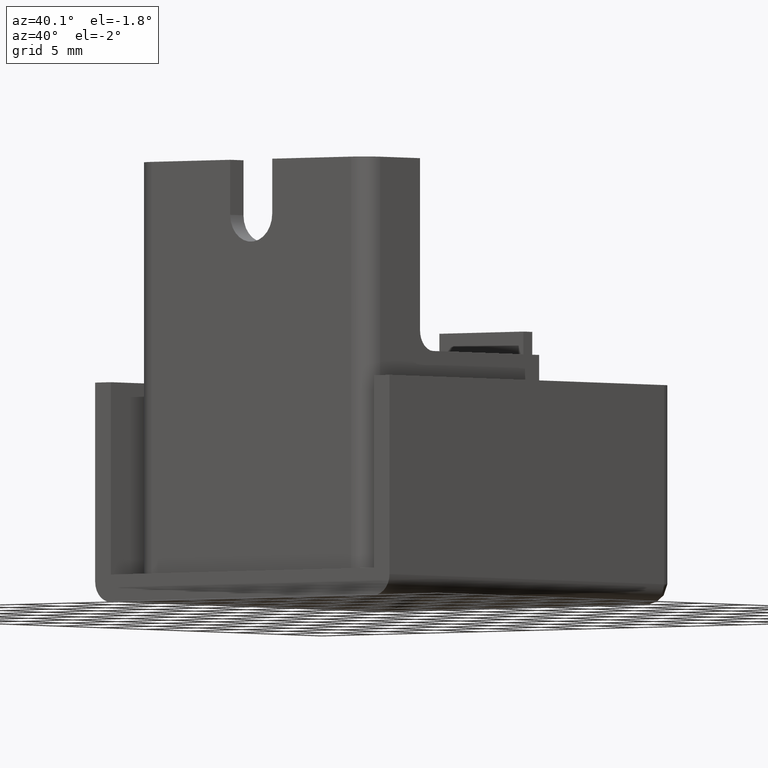
[diagram: clean part render]
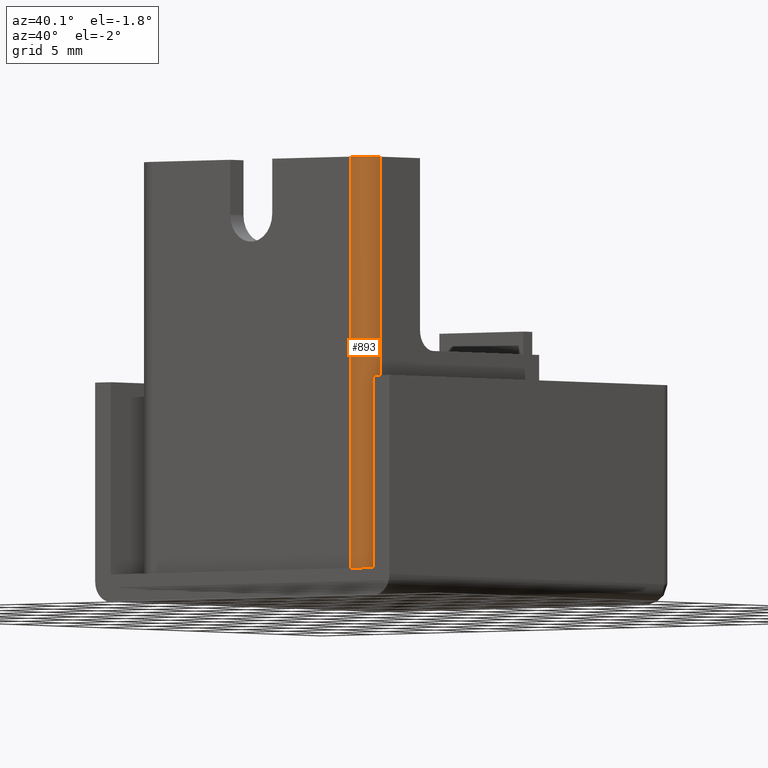
[diagram: same view with one face highlighted and labeled with its STEP entity id]
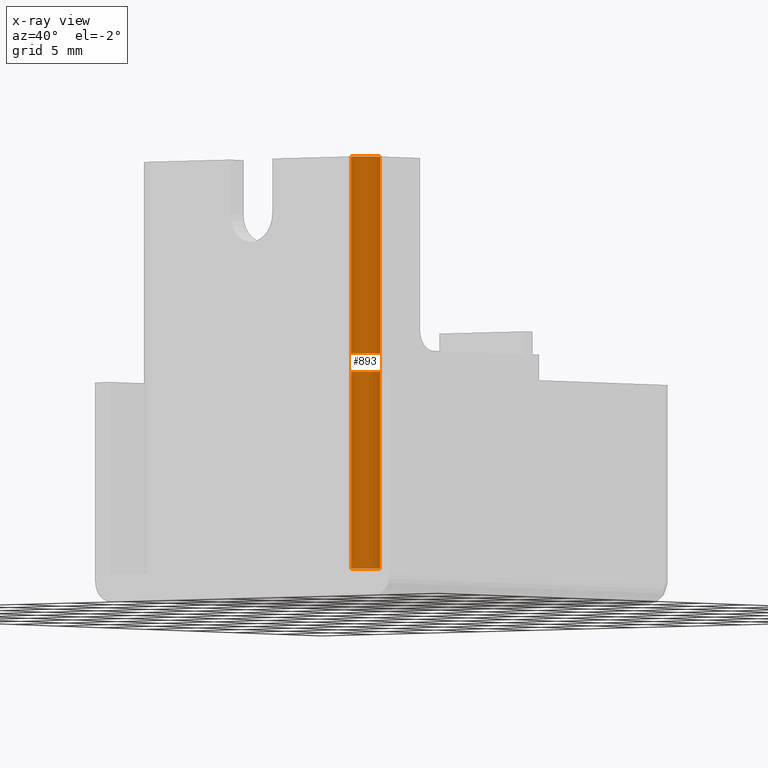
[diagram: x-ray of the same camera — body ghosted, the highlighted face saturated]
A machine part, auxiliary view. The second image highlights one B-rep face of the part: STEP entity #893.
The next image is the same camera in x-ray: the body ghosted, the highlighted face saturated — about 0% of this face is hidden behind the body in this view.
In plain terms, the highlighted cylindrical surface (edge-blend (fillet) strip) has radius 1.5 mm, axis along (0, 0, 1).
Its self-contained STEP definition (entity closure, byte-faithful):
#98=LINE('',#1421,#203);
#117=LINE('',#1469,#222);
#203=VECTOR('',#1097,30.);
#222=VECTOR('',#1138,30.);
#268=CYLINDRICAL_SURFACE('',#960,1.5);
#296=FACE_OUTER_BOUND('',#347,.T.);
#347=EDGE_LOOP('',(#739,#740,#741,#742));
#380=CIRCLE('',#947,1.5);
#385=CIRCLE('',#955,1.5);
#434=VERTEX_POINT('',#1403);
#435=VERTEX_POINT('',#1405);
#441=VERTEX_POINT('',#1419);
#451=VERTEX_POINT('',#1444);
#532=EDGE_CURVE('',#435,#434,#380,.T.);
#540=EDGE_CURVE('',#434,#441,#98,.T.);
#553=EDGE_CURVE('',#441,#451,#385,.F.);
#565=EDGE_CURVE('',#451,#435,#117,.T.);
#739=ORIENTED_EDGE('',*,*,#532,.T.);
#740=ORIENTED_EDGE('',*,*,#540,.T.);
#741=ORIENTED_EDGE('',*,*,#553,.T.);
#742=ORIENTED_EDGE('',*,*,#565,.T.);
#893=ADVANCED_FACE('',(#296),#268,.T.);
#947=AXIS2_PLACEMENT_3D('',#1406,#1085,#1086);
#955=AXIS2_PLACEMENT_3D('',#1446,#1117,#1118);
#960=AXIS2_PLACEMENT_3D('',#1468,#1136,#1137);
#1085=DIRECTION('center_axis',(0.,0.,-1.));
#1086=DIRECTION('ref_axis',(0.707106781186548,-0.707106781186547,0.));
#1097=DIRECTION('',(0.,0.,-1.));
#1117=DIRECTION('center_axis',(0.,0.,-1.));
#1118=DIRECTION('ref_axis',(0.707106781186548,-0.707106781186547,0.));
#1136=DIRECTION('center_axis',(0.,0.,1.));
#1137=DIRECTION('ref_axis',(0.707106781186548,-0.707106781186547,0.));
#1138=DIRECTION('',(0.,0.,1.));
#1403=CARTESIAN_POINT('',(9.50000000000001,-14.5,24.));
#1405=CARTESIAN_POINT('',(11.,-13.,24.));
#1406=CARTESIAN_POINT('Origin',(9.50000000000001,-13.,24.));
#1419=CARTESIAN_POINT('',(9.50000000000001,-14.5,-6.));
#1421=CARTESIAN_POINT('',(9.50000000000001,-14.5,-6.));
#1444=CARTESIAN_POINT('',(11.,-13.,-6.));
#1446=CARTESIAN_POINT('Origin',(9.50000000000001,-13.,-6.));
#1468=CARTESIAN_POINT('Origin',(9.50000000000001,-13.,-6.));
#1469=CARTESIAN_POINT('',(11.,-13.,-6.));